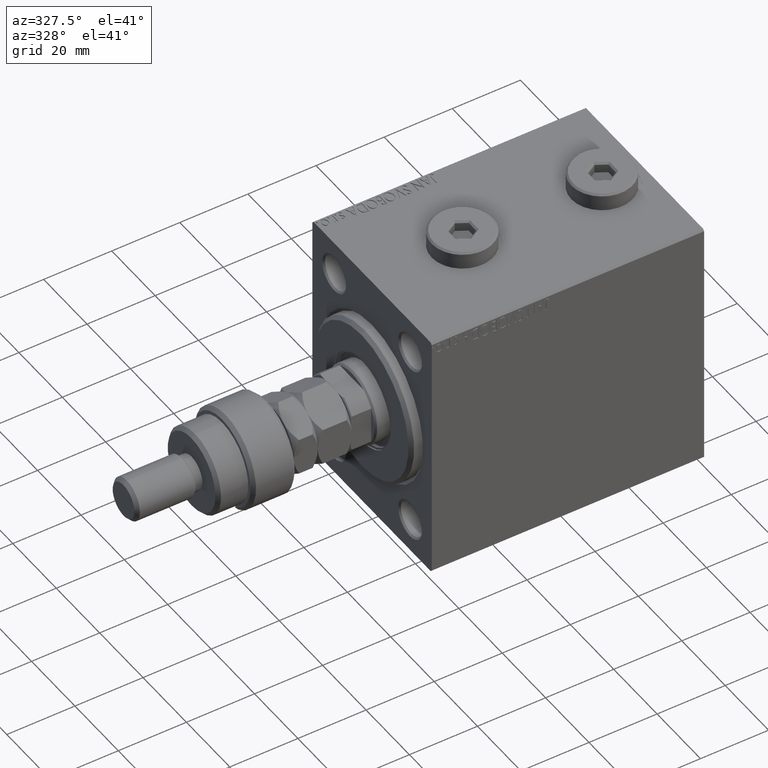
[diagram: clean part render]
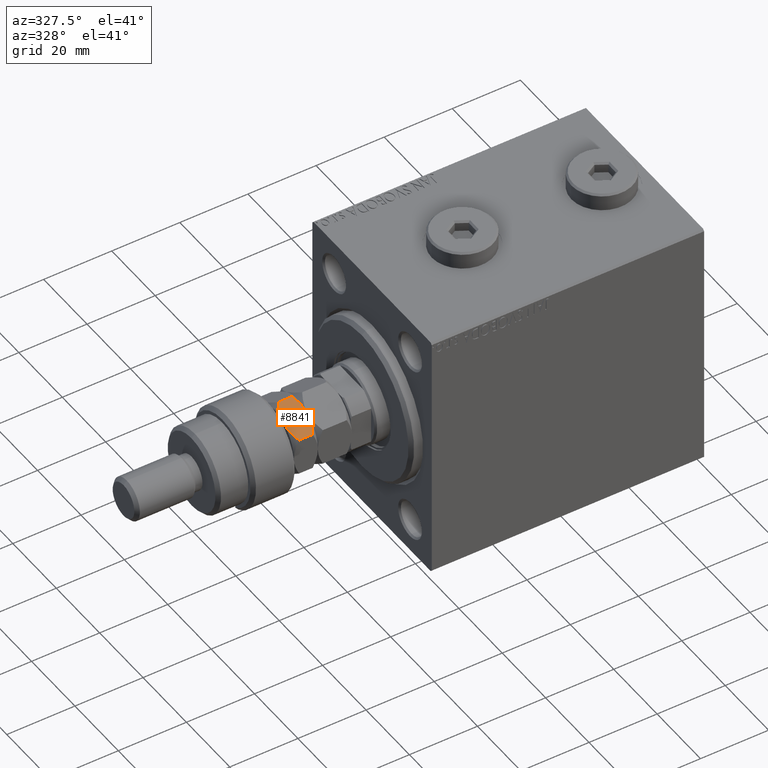
[diagram: same view with one face highlighted and labeled with its STEP entity id]
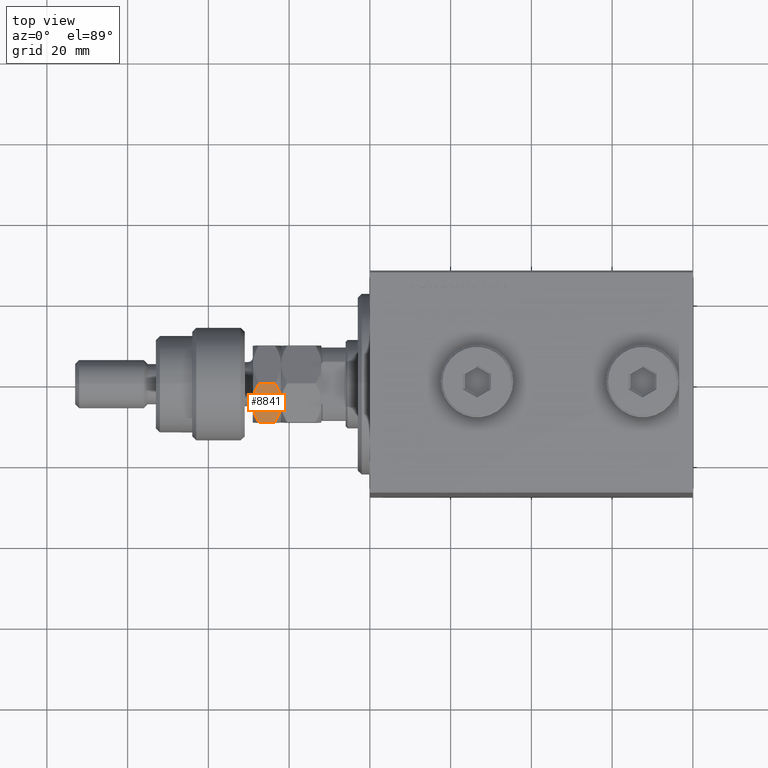
[diagram: same view with one face highlighted and labeled with its STEP entity id]
A machine part, auxiliary view. The second image highlights one B-rep face of the part: STEP entity #8841.
A second angle (top view) of the same face is appended — the face is thin or edge-on in the first view.
In plain terms, the highlighted planar face has unit normal (-0, 0.5, -0.866).
Its self-contained STEP definition (entity closure, byte-faithful):
#1923 = CARTESIAN_POINT ( 'NONE',  ( 9.499999999999994671, -3.739300393387253951, 10.70136854772636070 ) ) ;
#2005 = CARTESIAN_POINT ( 'NONE',  ( 9.499999999999998224, 0.9560725362376377712, 17.00000000000000000 ) ) ;
#2396 = CARTESIAN_POINT ( 'NONE',  ( 9.499999999999996447, -0.9560725362376376602, 9.999999999999994671 ) ) ;
#3038 = LINE ( 'NONE', #39783, #15069 ) ;
#3135 = B_SPLINE_CURVE_WITH_KNOTS ( 'NONE', 3,
 ( #3160, #6341, #47711, #39906, #14167, #22239, #33013, #43810, #47471, #10963 ),
 .UNSPECIFIED., .F., .F.,
 ( 4, 2, 2, 2, 4 ),
 ( 0.01567844649877152968, 0.01710651001824320741, 0.01853457353771488514, 0.01996263705718656287, 0.02139070057665824059 ),
 .UNSPECIFIED. ) ;
#3160 = CARTESIAN_POINT ( 'NONE',  ( 9.499999999999992895, 5.484827557301444223, 11.46965511460288134 ) ) ;
#3669 = EDGE_CURVE ( 'NONE', #8550, #41561, #22755, .T. ) ;
#4683 = CARTESIAN_POINT ( 'NONE',  ( 9.499999999999996447, -5.058637179188067101, 15.74344007445382232 ) ) ;
#4796 = CARTESIAN_POINT ( 'NONE',  ( 9.499999999999992895, 5.484827557301444223, 15.53034488539711866 ) ) ;
#6216 = DIRECTION ( 'NONE',  ( -0.000000000000000000, -0.000000000000000000, -1.000000000000000000 ) ) ;
#6341 = CARTESIAN_POINT ( 'NONE',  ( 9.499999999999992895, 5.058637179188067101, 11.25655992554617946 ) ) ;
#6547 = CARTESIAN_POINT ( 'NONE',  ( 9.499999999999994671, -5.058804922144361171, 11.25664379702434204 ) ) ;
#6928 = ORIENTED_EDGE ( 'NONE', *, *, #3669, .F. ) ;
#7625 = CARTESIAN_POINT ( 'NONE',  ( 9.499999999999994671, -1.905622789724483956, 16.82204041425849539 ) ) ;
#7866 = CARTESIAN_POINT ( 'NONE',  ( 9.499999999999992895, -4.621752210278242678, 15.94323528982841864 ) ) ;
#8278 = VERTEX_POINT ( 'NONE', #34301 ) ;
#8521 = CARTESIAN_POINT ( 'NONE',  ( 9.499999999999994671, -5.484827557301442447, 15.53034488539711688 ) ) ;
#8550 = VERTEX_POINT ( 'NONE', #8521 ) ;
#8841 = ADVANCED_FACE ( 'NONE', ( #21854 ), #32400, .F. ) ;
#10207 = CARTESIAN_POINT ( 'NONE',  ( 9.499999999999994671, -5.484827557301443335, 11.46965511460288312 ) ) ;
#10963 = CARTESIAN_POINT ( 'NONE',  ( 9.499999999999996447, 0.000000000000000000, 10.00000000000000000 ) ) ;
#13122 = EDGE_CURVE ( 'NONE', #36255, #13255, #41167, .T. ) ;
#13255 = VERTEX_POINT ( 'NONE', #32543 ) ;
#13886 = CARTESIAN_POINT ( 'NONE',  ( 9.499999999999996447, -4.625461644961930574, 11.05843019788303749 ) ) ;
#14167 = CARTESIAN_POINT ( 'NONE',  ( 9.499999999999994671, 3.283585621344905725, 10.54191787159927607 ) ) ;
#15069 = VECTOR ( 'NONE', #6216, 1000.000000000000000 ) ;
#16566 = VERTEX_POINT ( 'NONE', #33308 ) ;
#16840 = CARTESIAN_POINT ( 'NONE',  ( 9.499999999999991118, -1.895392204582992068, 10.14648436506573681 ) ) ;
#17706 = DIRECTION ( 'NONE',  ( -1.000000000000000000, -1.581383788144378447E-16, 0.000000000000000000 ) ) ;
#19382 = ORIENTED_EDGE ( 'NONE', *, *, #33541, .F. ) ;
#19613 = CARTESIAN_POINT ( 'NONE',  ( 9.499999999999994671, -5.484827557301442447, 15.53034488539711688 ) ) ;
#19867 = CARTESIAN_POINT ( 'NONE',  ( 9.499999999999994671, 1.895392204582990958, 16.85351563493426141 ) ) ;
#21186 = EDGE_CURVE ( 'NONE', #13255, #16566, #3135, .T. ) ;
#21854 = FACE_OUTER_BOUND ( 'NONE', #25167, .T. ) ;
#22239 = CARTESIAN_POINT ( 'NONE',  ( 9.499999999999994671, 2.369688663400943085, 10.28128848203000878 ) ) ;
#22571 = CARTESIAN_POINT ( 'NONE',  ( 9.499999999999994671, 1.502314598737158637E-15, 17.00000000000000000 ) ) ;
#22755 = B_SPLINE_CURVE_WITH_KNOTS ( 'NONE', 3,
 ( #19613, #4683, #7866, #26247, #22813, #41197, #7625, #37516, #45343, #22571 ),
 .UNSPECIFIED., .F., .F.,
 ( 4, 2, 2, 2, 4 ),
 ( 0.01567844649877152621, 0.01710651001824320394, 0.01853457353771487820, 0.01996263705718655593, 0.02139070057665823366 ),
 .UNSPECIFIED. ) ;
#22813 = CARTESIAN_POINT ( 'NONE',  ( 9.499999999999992895, -3.283585621344904393, 16.45808212840072215 ) ) ;
#24507 = CARTESIAN_POINT ( 'NONE',  ( 9.499999999999992895, 3.739300393387251731, 16.29863145227364640 ) ) ;
#24902 = CARTESIAN_POINT ( 'NONE',  ( 9.499999999999996447, 0.000000000000000000, 10.00000000000000000 ) ) ;
#25167 = EDGE_LOOP ( 'NONE', ( #25203, #44522, #19382, #6928, #39007, #25177 ) ) ;
#25177 = ORIENTED_EDGE ( 'NONE', *, *, #35293, .F. ) ;
#25203 = ORIENTED_EDGE ( 'NONE', *, *, #21186, .F. ) ;
#25481 = CARTESIAN_POINT ( 'NONE',  ( 9.499999999999989342, 5.058804922144356730, 15.74335620297565441 ) ) ;
#26247 = CARTESIAN_POINT ( 'NONE',  ( 9.499999999999991118, -3.733428111434933250, 16.30082488061093215 ) ) ;
#27043 = B_SPLINE_CURVE_WITH_KNOTS ( 'NONE', 3,
 ( #24902, #2396, #16840, #32498, #1923, #13886, #6547, #10207 ),
 .UNSPECIFIED., .F., .F.,
 ( 4, 2, 2, 4 ),
 ( 0.02139070057665824059, 0.02425837263787778211, 0.02569220866848755114, 0.02712604469909732363 ),
 .UNSPECIFIED. ) ;
#28962 = DIRECTION ( 'NONE',  ( 1.581383788144378447E-16, -1.000000000000000000, 0.000000000000000000 ) ) ;
#29946 = EDGE_CURVE ( 'NONE', #8550, #8278, #3038, .T. ) ;
#32400 = PLANE ( 'NONE',  #37126 ) ;
#32498 = CARTESIAN_POINT ( 'NONE',  ( 9.499999999999998224, -3.284280073076859985, 10.54188890834167758 ) ) ;
#32543 = CARTESIAN_POINT ( 'NONE',  ( 9.499999999999992895, 5.484827557301444223, 11.46965511460288134 ) ) ;
#33013 = CARTESIAN_POINT ( 'NONE',  ( 9.499999999999992895, 1.905622789724485067, 10.17795958574150283 ) ) ;
#33308 = CARTESIAN_POINT ( 'NONE',  ( 9.499999999999996447, 0.000000000000000000, 10.00000000000000000 ) ) ;
#33541 = EDGE_CURVE ( 'NONE', #41561, #36255, #38862, .T. ) ;
#34301 = CARTESIAN_POINT ( 'NONE',  ( 9.499999999999994671, -5.484827557301443335, 11.46965511460288312 ) ) ;
#35293 = EDGE_CURVE ( 'NONE', #16566, #8278, #27043, .T. ) ;
#36255 = VERTEX_POINT ( 'NONE', #4796 ) ;
#36333 = CARTESIAN_POINT ( 'NONE',  ( 9.499999999999994671, -5.484827557301443335, 17.00000000000000000 ) ) ;
#37126 = AXIS2_PLACEMENT_3D ( 'NONE', #36333, #17706, #28962 ) ;
#37516 = CARTESIAN_POINT ( 'NONE',  ( 9.499999999999992895, -0.9601762266066392604, 16.96304860489112087 ) ) ;
#38491 = CARTESIAN_POINT ( 'NONE',  ( 9.499999999999994671, 4.625461644961926133, 15.94156980211696251 ) ) ;
#38862 = B_SPLINE_CURVE_WITH_KNOTS ( 'NONE', 3,
 ( #42404, #2005, #19867, #43377, #24507, #38491, #25481, #39946 ),
 .UNSPECIFIED., .F., .F.,
 ( 4, 2, 2, 4 ),
 ( 0.02139070057665823366, 0.02425837263787777170, 0.02569220866848754420, 0.02712604469909731322 ),
 .UNSPECIFIED. ) ;
#39007 = ORIENTED_EDGE ( 'NONE', *, *, #29946, .T. ) ;
#39783 = CARTESIAN_POINT ( 'NONE',  ( 9.499999999999994671, -5.484827557301443335, 17.00000000000000000 ) ) ;
#39906 = CARTESIAN_POINT ( 'NONE',  ( 9.499999999999991118, 3.733428111434938135, 10.69917511938905896 ) ) ;
#39946 = CARTESIAN_POINT ( 'NONE',  ( 9.499999999999992895, 5.484827557301444223, 15.53034488539711866 ) ) ;
#40620 = VECTOR ( 'NONE', #48249, 1000.000000000000000 ) ;
#40929 = CARTESIAN_POINT ( 'NONE',  ( 9.499999999999992895, 5.484827557301444223, 17.00000000000000000 ) ) ;
#41167 = LINE ( 'NONE', #40929, #40620 ) ;
#41197 = CARTESIAN_POINT ( 'NONE',  ( 9.499999999999996447, -2.369688663400942197, 16.71871151796999300 ) ) ;
#41561 = VERTEX_POINT ( 'NONE', #42269 ) ;
#42269 = CARTESIAN_POINT ( 'NONE',  ( 9.499999999999994671, 1.502314598737158637E-15, 17.00000000000000000 ) ) ;
#42404 = CARTESIAN_POINT ( 'NONE',  ( 9.499999999999994671, 1.502314598737158637E-15, 17.00000000000000000 ) ) ;
#43377 = CARTESIAN_POINT ( 'NONE',  ( 9.499999999999992895, 3.284280073076856876, 16.45811109165832065 ) ) ;
#43810 = CARTESIAN_POINT ( 'NONE',  ( 9.499999999999994671, 0.9601762266066407037, 10.03695139510887380 ) ) ;
#44522 = ORIENTED_EDGE ( 'NONE', *, *, #13122, .F. ) ;
#45343 = CARTESIAN_POINT ( 'NONE',  ( 9.499999999999996447, -0.4761117316842318758, 17.00000000000000355 ) ) ;
#47471 = CARTESIAN_POINT ( 'NONE',  ( 9.499999999999991118, 0.4761117316842319869, 9.999999999999992895 ) ) ;
#47711 = CARTESIAN_POINT ( 'NONE',  ( 9.499999999999992895, 4.621752210278245343, 11.05676471017157958 ) ) ;
#48249 = DIRECTION ( 'NONE',  ( -0.000000000000000000, -0.000000000000000000, -1.000000000000000000 ) ) ;